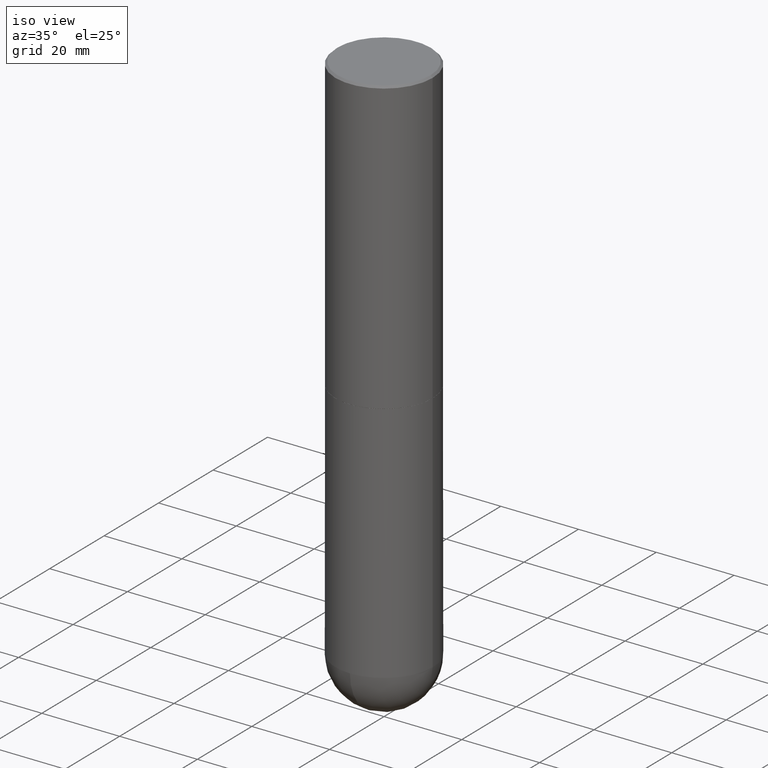
[diagram: clean part render]
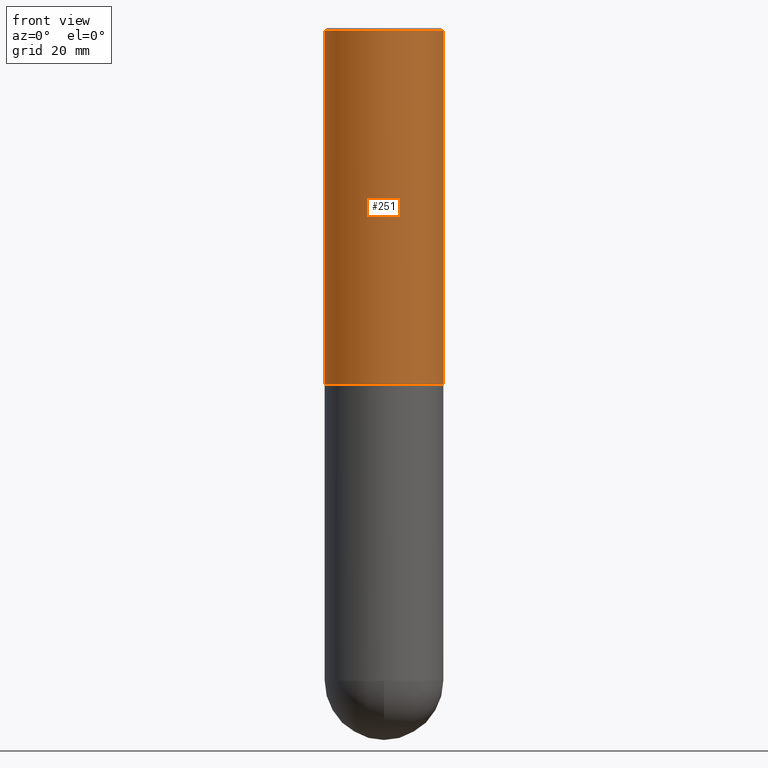
[diagram: tour spotlight — one face highlighted and labeled with its STEP entity id]
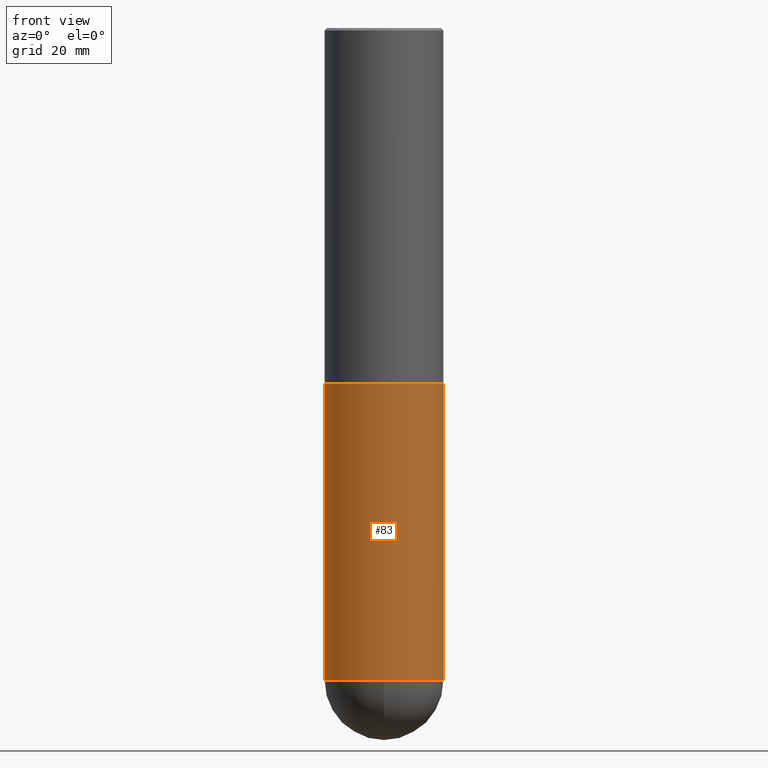
[diagram: tour spotlight — one face highlighted and labeled with its STEP entity id]
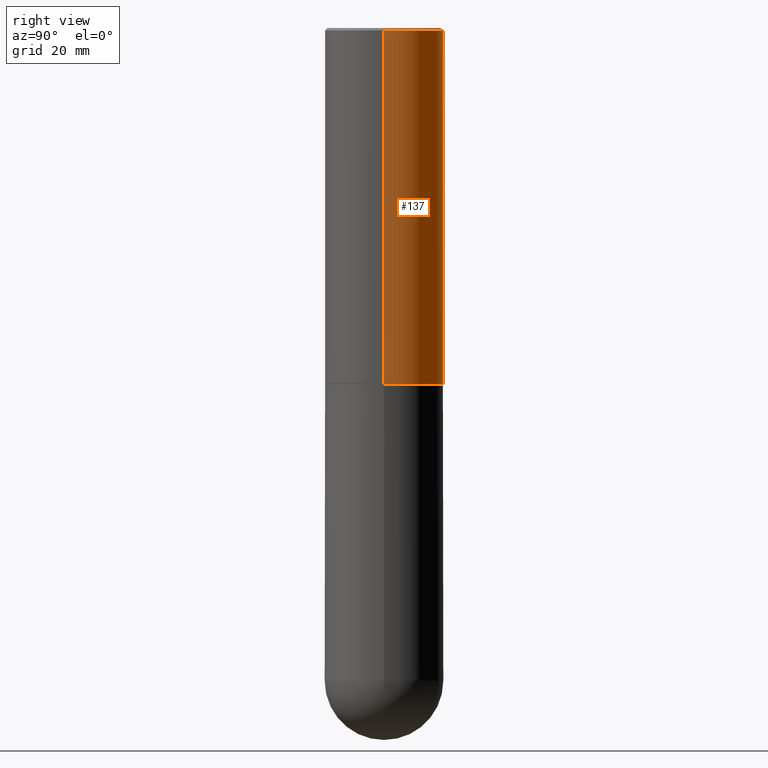
[diagram: tour spotlight — one face highlighted and labeled with its STEP entity id]
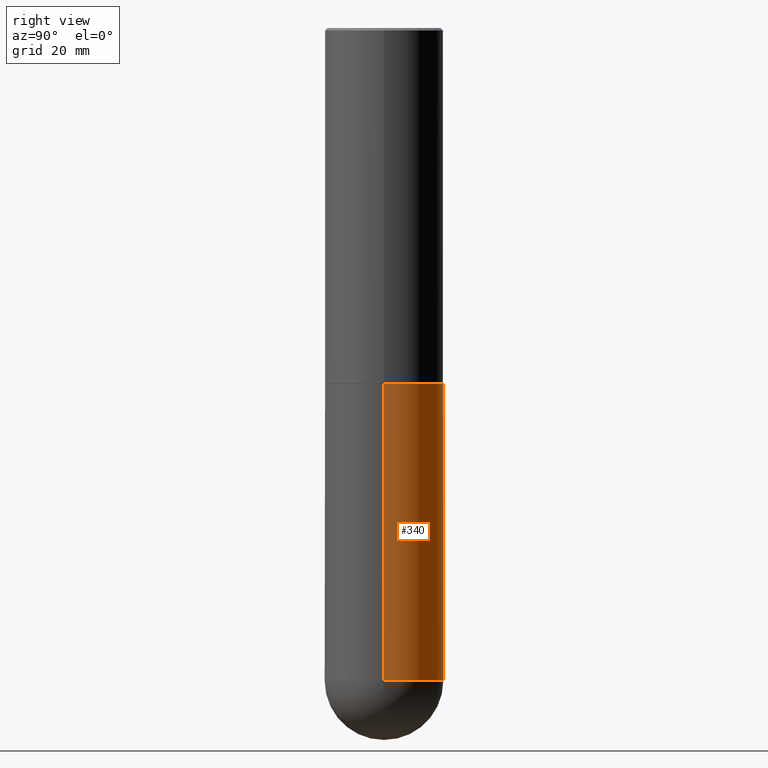
[diagram: tour spotlight — one face highlighted and labeled with its STEP entity id]
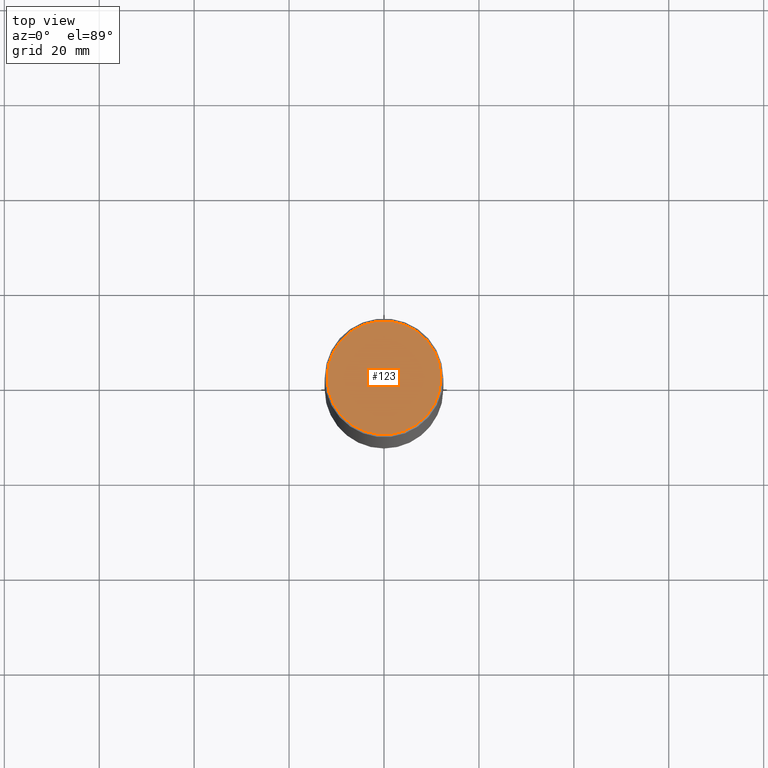
[diagram: tour spotlight — one face highlighted and labeled with its STEP entity id]
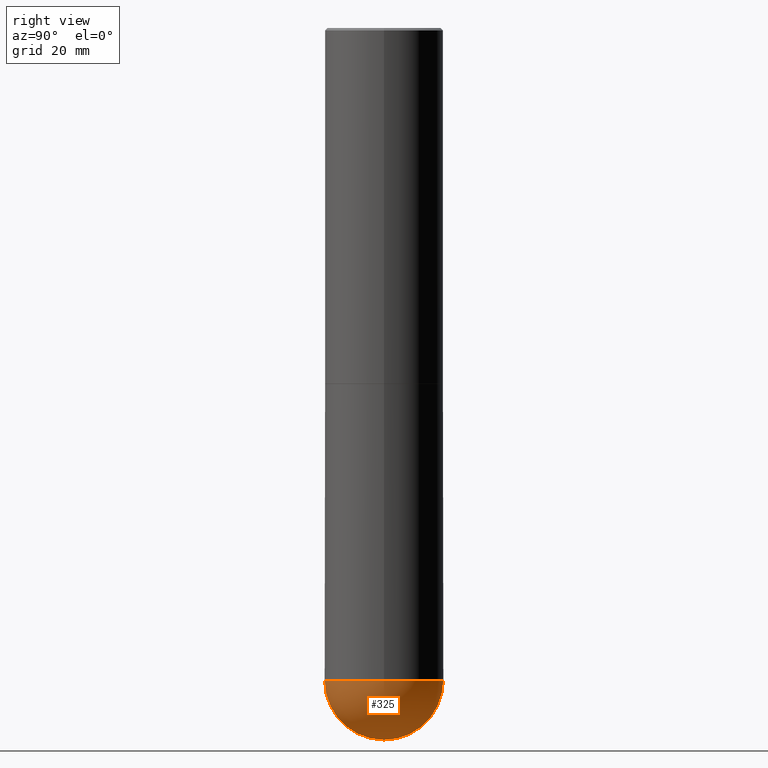
[diagram: tour spotlight — one face highlighted and labeled with its STEP entity id]
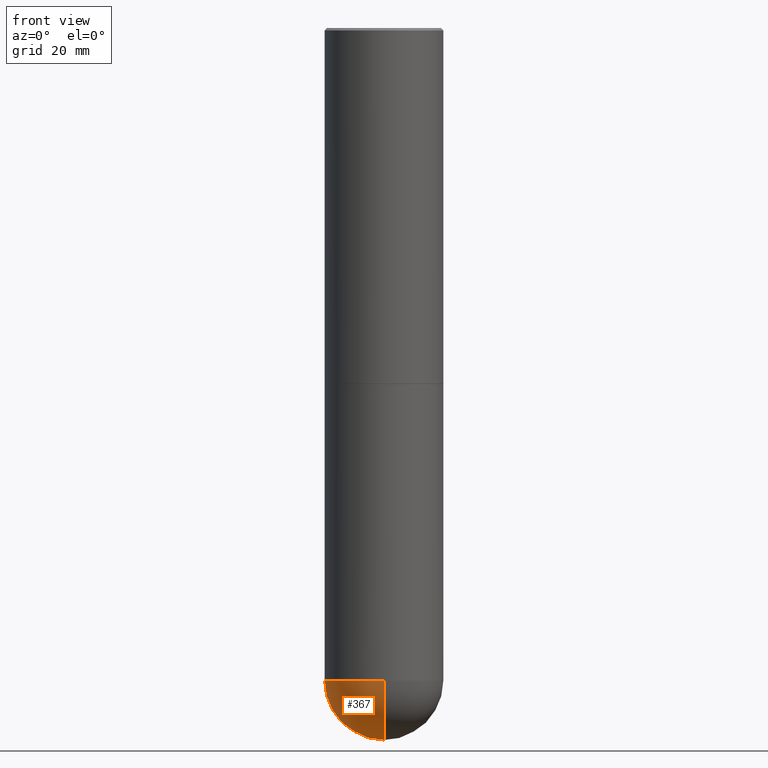
[diagram: tour spotlight — one face highlighted and labeled with its STEP entity id]
A machine part: a face-by-face anatomy tour. The part has 13 B-rep faces; the first image is the clean iso view, then the 7 largest visible faces are spotlighted one at a time (largest first), each with its STEP entity span.

Face 1 — front view, entity #251. In plain terms, the highlighted cylindrical surface (partial cylindrical patch) has radius 12.5006 mm, axis along (-0, 0, 1).
Definition (entity closure, byte-faithful):
#20 = EDGE_CURVE ( 'NONE', #111, #230, #24, .T. ) ;
#24 = CIRCLE ( 'NONE', #196, 0.4921500000000000319 ) ;
#26 = ORIENTED_EDGE ( 'NONE', *, *, #186, .T. ) ;
#33 = DIRECTION ( 'NONE',  ( 1.000000000000000000, -6.982962677686266711E-15, 4.876176775795935232E-29 ) ) ;
#36 = AXIS2_PLACEMENT_3D ( 'NONE', #333, #389, #33 ) ;
#57 = LINE ( 'NONE', #189, #332 ) ;
#66 = CARTESIAN_POINT ( 'NONE',  ( 7.218290275216666916E-29, -1.030580546786331359E-14, -2.951700000000000212 ) ) ;
#71 = CARTESIAN_POINT ( 'NONE',  ( -0.4921500000000003094, -1.690881473276752982E-15, -2.951700000000000212 ) ) ;
#75 = DIRECTION ( 'NONE',  ( -2.445468806185136877E-29, 3.491481338843145188E-15, 1.000000000000000000 ) ) ;
#79 = DIRECTION ( 'NONE',  ( -2.445468806185136597E-29, 3.491481338843145583E-15, 1.000000000000000000 ) ) ;
#85 = DIRECTION ( 'NONE',  ( 1.000000000000000000, -6.982962677686265922E-15, 0.000000000000000000 ) ) ;
#104 = VECTOR ( 'NONE', #75, 39.37007874015748143 ) ;
#108 = CARTESIAN_POINT ( 'NONE',  ( -0.4921500000000000319, 3.366835455046432873E-15, -0.02000000000000010797 ) ) ;
#111 = VERTEX_POINT ( 'NONE', #108 ) ;
#113 = VERTEX_POINT ( 'NONE', #71 ) ;
#121 = CARTESIAN_POINT ( 'NONE',  ( 0.4921500000000000319, -3.446223716380123138E-15, -0.02000000000000010797 ) ) ;
#146 = DIRECTION ( 'NONE',  ( -2.445468806185136597E-29, 3.491481338843145583E-15, 1.000000000000000000 ) ) ;
#153 = ORIENTED_EDGE ( 'NONE', *, *, #20, .F. ) ;
#186 = EDGE_CURVE ( 'NONE', #238, #230, #233, .T. ) ;
#189 = CARTESIAN_POINT ( 'NONE',  ( -0.4921500000000001984, 3.496936074043334475E-15, -2.420853904668952630E-29 ) ) ;
#196 = AXIS2_PLACEMENT_3D ( 'NONE', #346, #146, #85 ) ;
#199 = EDGE_CURVE ( 'NONE', #113, #238, #312, .T. ) ;
#202 = ORIENTED_EDGE ( 'NONE', *, *, #199, .T. ) ;
#210 = DIRECTION ( 'NONE',  ( 1.000000000000000000, -6.982962677686265922E-15, 0.000000000000000000 ) ) ;
#230 = VERTEX_POINT ( 'NONE', #121 ) ;
#233 = LINE ( 'NONE', #372, #104 ) ;
#238 = VERTEX_POINT ( 'NONE', #254 ) ;
#251 = ADVANCED_FACE ( 'NONE', ( #387 ), #392, .T. ) ;
#254 = CARTESIAN_POINT ( 'NONE',  ( 0.4921500000000003094, -1.374247054968661252E-14, -2.951700000000000212 ) ) ;
#312 = CIRCLE ( 'NONE', #396, 0.4921500000000003094 ) ;
#322 = EDGE_LOOP ( 'NONE', ( #391, #202, #26, #153 ) ) ;
#327 = DIRECTION ( 'NONE',  ( -2.445468806185136877E-29, 3.491481338843145188E-15, 1.000000000000000000 ) ) ;
#332 = VECTOR ( 'NONE', #327, 39.37007874015748143 ) ;
#333 = CARTESIAN_POINT ( 'NONE',  ( 0.000000000000000000, 0.000000000000000000, 0.000000000000000000 ) ) ;
#346 = CARTESIAN_POINT ( 'NONE',  ( 4.890937612370299433E-31, -6.982962677686328587E-17, -0.02000000000000010797 ) ) ;
#372 = CARTESIAN_POINT ( 'NONE',  ( 0.4921500000000001984, -3.436665081823297354E-15, 2.399810400207970443E-29 ) ) ;
#387 = FACE_OUTER_BOUND ( 'NONE', #322, .T. ) ;
#389 = DIRECTION ( 'NONE',  ( -2.445468806185136597E-29, 3.491481338843145583E-15, 1.000000000000000000 ) ) ;
#391 = ORIENTED_EDGE ( 'NONE', *, *, #412, .F. ) ;
#392 = CYLINDRICAL_SURFACE ( 'NONE', #36, 0.4921500000000001984 ) ;
#396 = AXIS2_PLACEMENT_3D ( 'NONE', #66, #79, #210 ) ;
#412 = EDGE_CURVE ( 'NONE', #113, #111, #57, .T. ) ;

Face 2 — front view, entity #83. In plain terms, the highlighted cylindrical surface (partial cylindrical patch) has radius 12.5006 mm, axis along (-0, 0, 1).
Definition (entity closure, byte-faithful):
#2 = CARTESIAN_POINT ( 'NONE',  ( 0.4921499999999999764, -1.804161880923764651E-14, -5.413349999999999440 ) ) ;
#6 = AXIS2_PLACEMENT_3D ( 'NONE', #256, #188, #91 ) ;
#10 = CARTESIAN_POINT ( 'NONE',  ( 0.4921499999999999764, -1.374596203102545079E-14, -2.952700000000000102 ) ) ;
#13 = CARTESIAN_POINT ( 'NONE',  ( -3.496936074043201946E-15, -0.4921500000000192387, -5.413349999999997664 ) ) ;
#18 = DIRECTION ( 'NONE',  ( -2.445468806185136597E-29, 3.491481338843145583E-15, 1.000000000000000000 ) ) ;
#39 = VERTEX_POINT ( 'NONE', #43 ) ;
#40 = CARTESIAN_POINT ( 'NONE',  ( -0.4921499999999999764, -1.110801765337101547E-14, -2.952700000000000102 ) ) ;
#42 = DIRECTION ( 'NONE',  ( 1.000000000000000000, -6.982962677686265922E-15, 4.876176775795935793E-29 ) ) ;
#43 = CARTESIAN_POINT ( 'NONE',  ( -0.4921499999999999764, -1.110801765337101862E-14, -5.413349999999999440 ) ) ;
#45 = DIRECTION ( 'NONE',  ( 1.000000000000000000, -6.982962677686265922E-15, 0.000000000000000000 ) ) ;
#58 = CARTESIAN_POINT ( 'NONE',  ( 7.220735744022852519E-29, -1.030929694920215502E-14, -2.952700000000000102 ) ) ;
#61 = DIRECTION ( 'NONE',  ( -2.445468806185136597E-29, 3.491481338843145583E-15, 1.000000000000000000 ) ) ;
#64 = DIRECTION ( 'NONE',  ( 1.000000000000000000, -6.982962677686265922E-15, 0.000000000000000000 ) ) ;
#72 = ORIENTED_EDGE ( 'NONE', *, *, #329, .F. ) ;
#80 = VERTEX_POINT ( 'NONE', #40 ) ;
#83 = ADVANCED_FACE ( 'NONE', ( #237 ), #200, .T. ) ;
#86 = AXIS2_PLACEMENT_3D ( 'NONE', #58, #61, #64 ) ;
#91 = DIRECTION ( 'NONE',  ( 1.000000000000000000, -6.982962677686265922E-15, 0.000000000000000000 ) ) ;
#94 = EDGE_CURVE ( 'NONE', #115, #250, #191, .T. ) ;
#99 = CIRCLE ( 'NONE', #6, 0.4921499999999999764 ) ;
#115 = VERTEX_POINT ( 'NONE', #13 ) ;
#139 = AXIS2_PLACEMENT_3D ( 'NONE', #205, #18, #45 ) ;
#143 = ORIENTED_EDGE ( 'NONE', *, *, #361, .F. ) ;
#151 = ORIENTED_EDGE ( 'NONE', *, *, #219, .T. ) ;
#163 = CARTESIAN_POINT ( 'NONE',  ( 0.4921499999999999764, -3.436665081823295777E-15, 2.399810400207969603E-29 ) ) ;
#169 = CARTESIAN_POINT ( 'NONE',  ( 0.000000000000000000, 0.000000000000000000, 0.000000000000000000 ) ) ;
#178 = DIRECTION ( 'NONE',  ( -2.445468806185136597E-29, 3.491481338843145583E-15, 1.000000000000000000 ) ) ;
#181 = VERTEX_POINT ( 'NONE', #10 ) ;
#188 = DIRECTION ( 'NONE',  ( -2.445468806185136597E-29, 3.491481338843145583E-15, 1.000000000000000000 ) ) ;
#191 = CIRCLE ( 'NONE', #139, 0.4921499999999999764 ) ;
#193 = DIRECTION ( 'NONE',  ( -2.445468806185136877E-29, 3.491481338843145188E-15, 1.000000000000000000 ) ) ;
#198 = VECTOR ( 'NONE', #193, 39.37007874015748143 ) ;
#200 = CYLINDRICAL_SURFACE ( 'NONE', #207, 0.4921499999999999764 ) ;
#205 = CARTESIAN_POINT ( 'NONE',  ( 1.323817856196230713E-28, -1.890061050562653856E-14, -5.413349999999999440 ) ) ;
#207 = AXIS2_PLACEMENT_3D ( 'NONE', #169, #178, #42 ) ;
#219 = EDGE_CURVE ( 'NONE', #39, #115, #99, .T. ) ;
#229 = CARTESIAN_POINT ( 'NONE',  ( -0.4921499999999999764, 3.496936074043332897E-15, -2.420853904668951509E-29 ) ) ;
#237 = FACE_OUTER_BOUND ( 'NONE', #313, .T. ) ;
#250 = VERTEX_POINT ( 'NONE', #2 ) ;
#253 = VECTOR ( 'NONE', #303, 39.37007874015748143 ) ;
#256 = CARTESIAN_POINT ( 'NONE',  ( 1.323817856196230713E-28, -1.890061050562653856E-14, -5.413349999999999440 ) ) ;
#265 = ORIENTED_EDGE ( 'NONE', *, *, #94, .T. ) ;
#301 = LINE ( 'NONE', #163, #253 ) ;
#303 = DIRECTION ( 'NONE',  ( -2.445468806185136877E-29, 3.491481338843145188E-15, 1.000000000000000000 ) ) ;
#313 = EDGE_LOOP ( 'NONE', ( #143, #151, #265, #405, #72 ) ) ;
#329 = EDGE_CURVE ( 'NONE', #80, #181, #386, .T. ) ;
#361 = EDGE_CURVE ( 'NONE', #39, #80, #393, .T. ) ;
#384 = EDGE_CURVE ( 'NONE', #250, #181, #301, .T. ) ;
#386 = CIRCLE ( 'NONE', #86, 0.4921499999999999764 ) ;
#393 = LINE ( 'NONE', #229, #198 ) ;
#405 = ORIENTED_EDGE ( 'NONE', *, *, #384, .T. ) ;

Face 3 — right view, entity #137. In plain terms, the highlighted cylindrical surface (partial cylindrical patch) has radius 12.5006 mm, axis along (-0, 0, 1).
Definition (entity closure, byte-faithful):
#5 = ORIENTED_EDGE ( 'NONE', *, *, #186, .F. ) ;
#14 = AXIS2_PLACEMENT_3D ( 'NONE', #103, #308, #282 ) ;
#22 = ORIENTED_EDGE ( 'NONE', *, *, #228, .T. ) ;
#55 = AXIS2_PLACEMENT_3D ( 'NONE', #295, #95, #385 ) ;
#57 = LINE ( 'NONE', #189, #332 ) ;
#71 = CARTESIAN_POINT ( 'NONE',  ( -0.4921500000000003094, -1.690881473276752982E-15, -2.951700000000000212 ) ) ;
#73 = EDGE_CURVE ( 'NONE', #230, #111, #77, .T. ) ;
#75 = DIRECTION ( 'NONE',  ( -2.445468806185136877E-29, 3.491481338843145188E-15, 1.000000000000000000 ) ) ;
#77 = CIRCLE ( 'NONE', #336, 0.4921500000000000319 ) ;
#95 = DIRECTION ( 'NONE',  ( -2.445468806185136597E-29, 3.491481338843145583E-15, 1.000000000000000000 ) ) ;
#103 = CARTESIAN_POINT ( 'NONE',  ( 0.000000000000000000, 0.000000000000000000, 0.000000000000000000 ) ) ;
#104 = VECTOR ( 'NONE', #75, 39.37007874015748143 ) ;
#108 = CARTESIAN_POINT ( 'NONE',  ( -0.4921500000000000319, 3.366835455046432873E-15, -0.02000000000000010797 ) ) ;
#111 = VERTEX_POINT ( 'NONE', #108 ) ;
#113 = VERTEX_POINT ( 'NONE', #71 ) ;
#121 = CARTESIAN_POINT ( 'NONE',  ( 0.4921500000000000319, -3.446223716380123138E-15, -0.02000000000000010797 ) ) ;
#137 = ADVANCED_FACE ( 'NONE', ( #244 ), #394, .T. ) ;
#160 = ORIENTED_EDGE ( 'NONE', *, *, #412, .T. ) ;
#172 = DIRECTION ( 'NONE',  ( -2.445468806185136597E-29, 3.491481338843145583E-15, 1.000000000000000000 ) ) ;
#186 = EDGE_CURVE ( 'NONE', #238, #230, #233, .T. ) ;
#189 = CARTESIAN_POINT ( 'NONE',  ( -0.4921500000000001984, 3.496936074043334475E-15, -2.420853904668952630E-29 ) ) ;
#201 = CARTESIAN_POINT ( 'NONE',  ( 4.890937612370299433E-31, -6.982962677686328587E-17, -0.02000000000000010797 ) ) ;
#228 = EDGE_CURVE ( 'NONE', #238, #113, #246, .T. ) ;
#230 = VERTEX_POINT ( 'NONE', #121 ) ;
#233 = LINE ( 'NONE', #372, #104 ) ;
#238 = VERTEX_POINT ( 'NONE', #254 ) ;
#244 = FACE_OUTER_BOUND ( 'NONE', #373, .T. ) ;
#246 = CIRCLE ( 'NONE', #55, 0.4921500000000003094 ) ;
#252 = ORIENTED_EDGE ( 'NONE', *, *, #73, .F. ) ;
#254 = CARTESIAN_POINT ( 'NONE',  ( 0.4921500000000003094, -1.374247054968661252E-14, -2.951700000000000212 ) ) ;
#282 = DIRECTION ( 'NONE',  ( 1.000000000000000000, -6.982962677686266711E-15, 4.876176775795935232E-29 ) ) ;
#295 = CARTESIAN_POINT ( 'NONE',  ( 7.218290275216666916E-29, -1.030580546786331359E-14, -2.951700000000000212 ) ) ;
#308 = DIRECTION ( 'NONE',  ( -2.445468806185136597E-29, 3.491481338843145583E-15, 1.000000000000000000 ) ) ;
#327 = DIRECTION ( 'NONE',  ( -2.445468806185136877E-29, 3.491481338843145188E-15, 1.000000000000000000 ) ) ;
#332 = VECTOR ( 'NONE', #327, 39.37007874015748143 ) ;
#336 = AXIS2_PLACEMENT_3D ( 'NONE', #201, #172, #339 ) ;
#339 = DIRECTION ( 'NONE',  ( 1.000000000000000000, -6.982962677686265922E-15, 0.000000000000000000 ) ) ;
#372 = CARTESIAN_POINT ( 'NONE',  ( 0.4921500000000001984, -3.436665081823297354E-15, 2.399810400207970443E-29 ) ) ;
#373 = EDGE_LOOP ( 'NONE', ( #22, #160, #252, #5 ) ) ;
#385 = DIRECTION ( 'NONE',  ( 1.000000000000000000, -6.982962677686265922E-15, 0.000000000000000000 ) ) ;
#394 = CYLINDRICAL_SURFACE ( 'NONE', #14, 0.4921500000000001984 ) ;
#412 = EDGE_CURVE ( 'NONE', #113, #111, #57, .T. ) ;

Face 4 — right view, entity #340. In plain terms, the highlighted cylindrical surface (partial cylindrical patch) has radius 12.5006 mm, axis along (-0, 0, 1).
Definition (entity closure, byte-faithful):
#2 = CARTESIAN_POINT ( 'NONE',  ( 0.4921499999999999764, -1.804161880923764651E-14, -5.413349999999999440 ) ) ;
#10 = CARTESIAN_POINT ( 'NONE',  ( 0.4921499999999999764, -1.374596203102545079E-14, -2.952700000000000102 ) ) ;
#39 = VERTEX_POINT ( 'NONE', #43 ) ;
#40 = CARTESIAN_POINT ( 'NONE',  ( -0.4921499999999999764, -1.110801765337101547E-14, -2.952700000000000102 ) ) ;
#43 = CARTESIAN_POINT ( 'NONE',  ( -0.4921499999999999764, -1.110801765337101862E-14, -5.413349999999999440 ) ) ;
#65 = FACE_OUTER_BOUND ( 'NONE', #98, .T. ) ;
#80 = VERTEX_POINT ( 'NONE', #40 ) ;
#88 = CARTESIAN_POINT ( 'NONE',  ( 1.323817856196230713E-28, -1.890061050562653856E-14, -5.413349999999999440 ) ) ;
#97 = DIRECTION ( 'NONE',  ( 1.000000000000000000, -6.982962677686265922E-15, 0.000000000000000000 ) ) ;
#98 = EDGE_LOOP ( 'NONE', ( #138, #352, #133, #262, #306 ) ) ;
#112 = AXIS2_PLACEMENT_3D ( 'NONE', #88, #223, #360 ) ;
#127 = DIRECTION ( 'NONE',  ( 1.000000000000000000, -6.982962677686265922E-15, 4.876176775795935793E-29 ) ) ;
#132 = CARTESIAN_POINT ( 'NONE',  ( 3.436665081823426728E-15, 0.4921499999999808250, -5.413350000000002105 ) ) ;
#133 = ORIENTED_EDGE ( 'NONE', *, *, #354, .F. ) ;
#138 = ORIENTED_EDGE ( 'NONE', *, *, #242, .T. ) ;
#156 = DIRECTION ( 'NONE',  ( -2.445468806185136597E-29, 3.491481338843145583E-15, 1.000000000000000000 ) ) ;
#163 = CARTESIAN_POINT ( 'NONE',  ( 0.4921499999999999764, -3.436665081823295777E-15, 2.399810400207969603E-29 ) ) ;
#168 = EDGE_CURVE ( 'NONE', #250, #351, #187, .T. ) ;
#181 = VERTEX_POINT ( 'NONE', #10 ) ;
#187 = CIRCLE ( 'NONE', #294, 0.4921499999999999764 ) ;
#193 = DIRECTION ( 'NONE',  ( -2.445468806185136877E-29, 3.491481338843145188E-15, 1.000000000000000000 ) ) ;
#194 = CARTESIAN_POINT ( 'NONE',  ( 7.220735744022852519E-29, -1.030929694920215502E-14, -2.952700000000000102 ) ) ;
#198 = VECTOR ( 'NONE', #193, 39.37007874015748143 ) ;
#220 = AXIS2_PLACEMENT_3D ( 'NONE', #300, #156, #127 ) ;
#223 = DIRECTION ( 'NONE',  ( -2.445468806185136597E-29, 3.491481338843145583E-15, 1.000000000000000000 ) ) ;
#229 = CARTESIAN_POINT ( 'NONE',  ( -0.4921499999999999764, 3.496936074043332897E-15, -2.420853904668951509E-29 ) ) ;
#242 = EDGE_CURVE ( 'NONE', #351, #39, #304, .T. ) ;
#250 = VERTEX_POINT ( 'NONE', #2 ) ;
#253 = VECTOR ( 'NONE', #303, 39.37007874015748143 ) ;
#258 = CYLINDRICAL_SURFACE ( 'NONE', #220, 0.4921499999999999764 ) ;
#262 = ORIENTED_EDGE ( 'NONE', *, *, #384, .F. ) ;
#269 = DIRECTION ( 'NONE',  ( -2.445468806185136597E-29, 3.491481338843145583E-15, 1.000000000000000000 ) ) ;
#275 = CARTESIAN_POINT ( 'NONE',  ( 1.323817856196230713E-28, -1.890061050562653856E-14, -5.413349999999999440 ) ) ;
#294 = AXIS2_PLACEMENT_3D ( 'NONE', #275, #269, #401 ) ;
#300 = CARTESIAN_POINT ( 'NONE',  ( 0.000000000000000000, 0.000000000000000000, 0.000000000000000000 ) ) ;
#301 = LINE ( 'NONE', #163, #253 ) ;
#303 = DIRECTION ( 'NONE',  ( -2.445468806185136877E-29, 3.491481338843145188E-15, 1.000000000000000000 ) ) ;
#304 = CIRCLE ( 'NONE', #112, 0.4921499999999999764 ) ;
#306 = ORIENTED_EDGE ( 'NONE', *, *, #168, .T. ) ;
#340 = ADVANCED_FACE ( 'NONE', ( #65 ), #258, .T. ) ;
#351 = VERTEX_POINT ( 'NONE', #132 ) ;
#352 = ORIENTED_EDGE ( 'NONE', *, *, #361, .T. ) ;
#353 = CIRCLE ( 'NONE', #383, 0.4921499999999999764 ) ;
#354 = EDGE_CURVE ( 'NONE', #181, #80, #353, .T. ) ;
#360 = DIRECTION ( 'NONE',  ( 1.000000000000000000, -6.982962677686265922E-15, 0.000000000000000000 ) ) ;
#361 = EDGE_CURVE ( 'NONE', #39, #80, #393, .T. ) ;
#383 = AXIS2_PLACEMENT_3D ( 'NONE', #194, #390, #97 ) ;
#384 = EDGE_CURVE ( 'NONE', #250, #181, #301, .T. ) ;
#390 = DIRECTION ( 'NONE',  ( -2.445468806185136597E-29, 3.491481338843145583E-15, 1.000000000000000000 ) ) ;
#393 = LINE ( 'NONE', #229, #198 ) ;
#401 = DIRECTION ( 'NONE',  ( 1.000000000000000000, -6.982962677686265922E-15, 0.000000000000000000 ) ) ;

Face 5 — top view, entity #123. In plain terms, the highlighted planar face has unit normal (0, -0, -1).
Definition (entity closure, byte-faithful):
#9 = EDGE_CURVE ( 'NONE', #215, #34, #157, .T. ) ;
#16 = DIRECTION ( 'NONE',  ( -1.000000000000000000, 6.982962677686265922E-15, -4.876176775795935793E-29 ) ) ;
#17 = DIRECTION ( 'NONE',  ( 1.000000000000000000, -6.982962677686266711E-15, 4.875605319575679544E-29 ) ) ;
#34 = VERTEX_POINT ( 'NONE', #176 ) ;
#87 = CARTESIAN_POINT ( 'NONE',  ( -1.461391980069309186E-45, 2.086480438532628324E-31, 5.975917486140581337E-17 ) ) ;
#122 = CARTESIAN_POINT ( 'NONE',  ( -0.4721499999999999031, 3.331920641658001618E-15, 5.975917486138264058E-17 ) ) ;
#123 = ADVANCED_FACE ( 'NONE', ( #134 ), #165, .F. ) ;
#134 = FACE_OUTER_BOUND ( 'NONE', #370, .T. ) ;
#154 = EDGE_CURVE ( 'NONE', #34, #215, #364, .T. ) ;
#157 = CIRCLE ( 'NONE', #174, 0.4721499999999999031 ) ;
#165 = PLANE ( 'NONE',  #331 ) ;
#174 = AXIS2_PLACEMENT_3D ( 'NONE', #87, #247, #17 ) ;
#176 = CARTESIAN_POINT ( 'NONE',  ( 0.4721499999999999031, -3.342703923013975369E-15, 5.975917486142903546E-17 ) ) ;
#182 = AXIS2_PLACEMENT_3D ( 'NONE', #305, #398, #404 ) ;
#215 = VERTEX_POINT ( 'NONE', #122 ) ;
#240 = DIRECTION ( 'NONE',  ( 2.438088387897960049E-29, -3.491481338843145188E-15, -1.000000000000000000 ) ) ;
#247 = DIRECTION ( 'NONE',  ( -2.445468806185136597E-29, 3.491481338843145583E-15, 1.000000000000000000 ) ) ;
#273 = ORIENTED_EDGE ( 'NONE', *, *, #9, .T. ) ;
#305 = CARTESIAN_POINT ( 'NONE',  ( -1.461391980069309186E-45, 2.086480438532628324E-31, 5.975917486140581337E-17 ) ) ;
#331 = AXIS2_PLACEMENT_3D ( 'NONE', #363, #240, #16 ) ;
#363 = CARTESIAN_POINT ( 'NONE',  ( 3.297005828269569575E-15, 0.4721499999999999031, -1.618623326704087914E-15 ) ) ;
#364 = CIRCLE ( 'NONE', #182, 0.4721499999999999031 ) ;
#370 = EDGE_LOOP ( 'NONE', ( #273, #402 ) ) ;
#398 = DIRECTION ( 'NONE',  ( -2.445468806185136597E-29, 3.491481338843145583E-15, 1.000000000000000000 ) ) ;
#402 = ORIENTED_EDGE ( 'NONE', *, *, #154, .T. ) ;
#404 = DIRECTION ( 'NONE',  ( 1.000000000000000000, -6.982962677686266711E-15, 4.875605319575679544E-29 ) ) ;

Face 6 — right view, entity #325. In plain terms, the highlighted spherical surface has radius 12.5006 mm.
Definition (entity closure, byte-faithful):
#2 = CARTESIAN_POINT ( 'NONE',  ( 0.4921499999999999764, -1.804161880923764651E-14, -5.413349999999999440 ) ) ;
#8 = ORIENTED_EDGE ( 'NONE', *, *, #94, .F. ) ;
#13 = CARTESIAN_POINT ( 'NONE',  ( -3.496936074043201946E-15, -0.4921500000000192387, -5.413349999999997664 ) ) ;
#18 = DIRECTION ( 'NONE',  ( -2.445468806185136597E-29, 3.491481338843145583E-15, 1.000000000000000000 ) ) ;
#29 = ORIENTED_EDGE ( 'NONE', *, *, #168, .F. ) ;
#30 = DIRECTION ( 'NONE',  ( -1.000000000000000000, 7.105427357601001070E-15, -4.926315508542082329E-29 ) ) ;
#45 = DIRECTION ( 'NONE',  ( 1.000000000000000000, -6.982962677686265922E-15, 0.000000000000000000 ) ) ;
#62 = AXIS2_PLACEMENT_3D ( 'NONE', #375, #365, #344 ) ;
#89 = AXIS2_PLACEMENT_3D ( 'NONE', #299, #30, #362 ) ;
#94 = EDGE_CURVE ( 'NONE', #115, #250, #191, .T. ) ;
#100 = FACE_OUTER_BOUND ( 'NONE', #309, .T. ) ;
#115 = VERTEX_POINT ( 'NONE', #13 ) ;
#132 = CARTESIAN_POINT ( 'NONE',  ( 3.436665081823426728E-15, 0.4921499999999808250, -5.413350000000002105 ) ) ;
#139 = AXIS2_PLACEMENT_3D ( 'NONE', #205, #18, #45 ) ;
#149 = AXIS2_PLACEMENT_3D ( 'NONE', #226, #357, #227 ) ;
#164 = CIRCLE ( 'NONE', #62, 0.4921500000000000874 ) ;
#168 = EDGE_CURVE ( 'NONE', #250, #351, #187, .T. ) ;
#187 = CIRCLE ( 'NONE', #294, 0.4921499999999999764 ) ;
#191 = CIRCLE ( 'NONE', #139, 0.4921499999999999764 ) ;
#192 = EDGE_CURVE ( 'NONE', #206, #351, #164, .T. ) ;
#205 = CARTESIAN_POINT ( 'NONE',  ( 1.323817856196230713E-28, -1.890061050562653856E-14, -5.413349999999999440 ) ) ;
#206 = VERTEX_POINT ( 'NONE', #348 ) ;
#217 = ORIENTED_EDGE ( 'NONE', *, *, #192, .T. ) ;
#226 = CARTESIAN_POINT ( 'NONE',  ( 1.290705878404842200E-28, -1.937479287376659043E-14, -5.413349999999999440 ) ) ;
#227 = DIRECTION ( 'NONE',  ( 6.982962677686266711E-15, 1.000000000000000000, -4.440675393541420887E-15 ) ) ;
#250 = VERTEX_POINT ( 'NONE', #2 ) ;
#261 = SPHERICAL_SURFACE ( 'NONE', #149, 0.4921500000000000874 ) ;
#269 = DIRECTION ( 'NONE',  ( -2.445468806185136597E-29, 3.491481338843145583E-15, 1.000000000000000000 ) ) ;
#275 = CARTESIAN_POINT ( 'NONE',  ( 1.323817856196230713E-28, -1.890061050562653856E-14, -5.413349999999999440 ) ) ;
#284 = CIRCLE ( 'NONE', #89, 0.4921500000000000874 ) ;
#288 = EDGE_CURVE ( 'NONE', #206, #115, #284, .T. ) ;
#294 = AXIS2_PLACEMENT_3D ( 'NONE', #275, #269, #401 ) ;
#299 = CARTESIAN_POINT ( 'NONE',  ( 1.290705878404842200E-28, -1.937479287376659043E-14, -5.413349999999999440 ) ) ;
#309 = EDGE_LOOP ( 'NONE', ( #324, #217, #29, #8 ) ) ;
#324 = ORIENTED_EDGE ( 'NONE', *, *, #288, .F. ) ;
#325 = ADVANCED_FACE ( 'NONE', ( #100 ), #261, .T. ) ;
#344 = DIRECTION ( 'NONE',  ( 6.982962677686265922E-15, 1.000000000000000000, 0.000000000000000000 ) ) ;
#348 = CARTESIAN_POINT ( 'NONE',  ( 1.413163976147341948E-28, -2.106298991856822883E-14, -5.905499999999999972 ) ) ;
#351 = VERTEX_POINT ( 'NONE', #132 ) ;
#357 = DIRECTION ( 'NONE',  ( -1.000000000000000000, 6.982962677686266711E-15, -4.883557194083112901E-29 ) ) ;
#362 = DIRECTION ( 'NONE',  ( -7.105427357601001070E-15, -1.000000000000000000, 0.000000000000000000 ) ) ;
#365 = DIRECTION ( 'NONE',  ( 1.000000000000000000, -6.982962677686265922E-15, 4.883557194083112340E-29 ) ) ;
#375 = CARTESIAN_POINT ( 'NONE',  ( 1.290705878404842200E-28, -1.937479287376659043E-14, -5.413349999999999440 ) ) ;
#401 = DIRECTION ( 'NONE',  ( 1.000000000000000000, -6.982962677686265922E-15, 0.000000000000000000 ) ) ;

Face 7 — front view, entity #367. In plain terms, the highlighted spherical surface has radius 12.5006 mm.
Definition (entity closure, byte-faithful):
#4 = SPHERICAL_SURFACE ( 'NONE', #67, 0.4921500000000000874 ) ;
#6 = AXIS2_PLACEMENT_3D ( 'NONE', #256, #188, #91 ) ;
#13 = CARTESIAN_POINT ( 'NONE',  ( -3.496936074043201946E-15, -0.4921500000000192387, -5.413349999999997664 ) ) ;
#30 = DIRECTION ( 'NONE',  ( -1.000000000000000000, 7.105427357601001070E-15, -4.926315508542082329E-29 ) ) ;
#35 = DIRECTION ( 'NONE',  ( 6.982962677686266711E-15, 1.000000000000000000, -4.440675393541420887E-15 ) ) ;
#39 = VERTEX_POINT ( 'NONE', #43 ) ;
#43 = CARTESIAN_POINT ( 'NONE',  ( -0.4921499999999999764, -1.110801765337101862E-14, -5.413349999999999440 ) ) ;
#62 = AXIS2_PLACEMENT_3D ( 'NONE', #375, #365, #344 ) ;
#67 = AXIS2_PLACEMENT_3D ( 'NONE', #128, #335, #35 ) ;
#88 = CARTESIAN_POINT ( 'NONE',  ( 1.323817856196230713E-28, -1.890061050562653856E-14, -5.413349999999999440 ) ) ;
#89 = AXIS2_PLACEMENT_3D ( 'NONE', #299, #30, #362 ) ;
#91 = DIRECTION ( 'NONE',  ( 1.000000000000000000, -6.982962677686265922E-15, 0.000000000000000000 ) ) ;
#99 = CIRCLE ( 'NONE', #6, 0.4921499999999999764 ) ;
#109 = ORIENTED_EDGE ( 'NONE', *, *, #219, .F. ) ;
#112 = AXIS2_PLACEMENT_3D ( 'NONE', #88, #223, #360 ) ;
#115 = VERTEX_POINT ( 'NONE', #13 ) ;
#128 = CARTESIAN_POINT ( 'NONE',  ( 1.290705878404842200E-28, -1.937479287376659043E-14, -5.413349999999999440 ) ) ;
#129 = ORIENTED_EDGE ( 'NONE', *, *, #242, .F. ) ;
#132 = CARTESIAN_POINT ( 'NONE',  ( 3.436665081823426728E-15, 0.4921499999999808250, -5.413350000000002105 ) ) ;
#164 = CIRCLE ( 'NONE', #62, 0.4921500000000000874 ) ;
#170 = ORIENTED_EDGE ( 'NONE', *, *, #192, .F. ) ;
#173 = EDGE_LOOP ( 'NONE', ( #170, #343, #109, #129 ) ) ;
#188 = DIRECTION ( 'NONE',  ( -2.445468806185136597E-29, 3.491481338843145583E-15, 1.000000000000000000 ) ) ;
#192 = EDGE_CURVE ( 'NONE', #206, #351, #164, .T. ) ;
#206 = VERTEX_POINT ( 'NONE', #348 ) ;
#219 = EDGE_CURVE ( 'NONE', #39, #115, #99, .T. ) ;
#223 = DIRECTION ( 'NONE',  ( -2.445468806185136597E-29, 3.491481338843145583E-15, 1.000000000000000000 ) ) ;
#242 = EDGE_CURVE ( 'NONE', #351, #39, #304, .T. ) ;
#256 = CARTESIAN_POINT ( 'NONE',  ( 1.323817856196230713E-28, -1.890061050562653856E-14, -5.413349999999999440 ) ) ;
#284 = CIRCLE ( 'NONE', #89, 0.4921500000000000874 ) ;
#288 = EDGE_CURVE ( 'NONE', #206, #115, #284, .T. ) ;
#299 = CARTESIAN_POINT ( 'NONE',  ( 1.290705878404842200E-28, -1.937479287376659043E-14, -5.413349999999999440 ) ) ;
#304 = CIRCLE ( 'NONE', #112, 0.4921499999999999764 ) ;
#334 = FACE_OUTER_BOUND ( 'NONE', #173, .T. ) ;
#335 = DIRECTION ( 'NONE',  ( -1.000000000000000000, 6.982962677686266711E-15, -4.883557194083112901E-29 ) ) ;
#343 = ORIENTED_EDGE ( 'NONE', *, *, #288, .T. ) ;
#344 = DIRECTION ( 'NONE',  ( 6.982962677686265922E-15, 1.000000000000000000, 0.000000000000000000 ) ) ;
#348 = CARTESIAN_POINT ( 'NONE',  ( 1.413163976147341948E-28, -2.106298991856822883E-14, -5.905499999999999972 ) ) ;
#351 = VERTEX_POINT ( 'NONE', #132 ) ;
#360 = DIRECTION ( 'NONE',  ( 1.000000000000000000, -6.982962677686265922E-15, 0.000000000000000000 ) ) ;
#362 = DIRECTION ( 'NONE',  ( -7.105427357601001070E-15, -1.000000000000000000, 0.000000000000000000 ) ) ;
#365 = DIRECTION ( 'NONE',  ( 1.000000000000000000, -6.982962677686265922E-15, 4.883557194083112340E-29 ) ) ;
#367 = ADVANCED_FACE ( 'NONE', ( #334 ), #4, .T. ) ;
#375 = CARTESIAN_POINT ( 'NONE',  ( 1.290705878404842200E-28, -1.937479287376659043E-14, -5.413349999999999440 ) ) ;